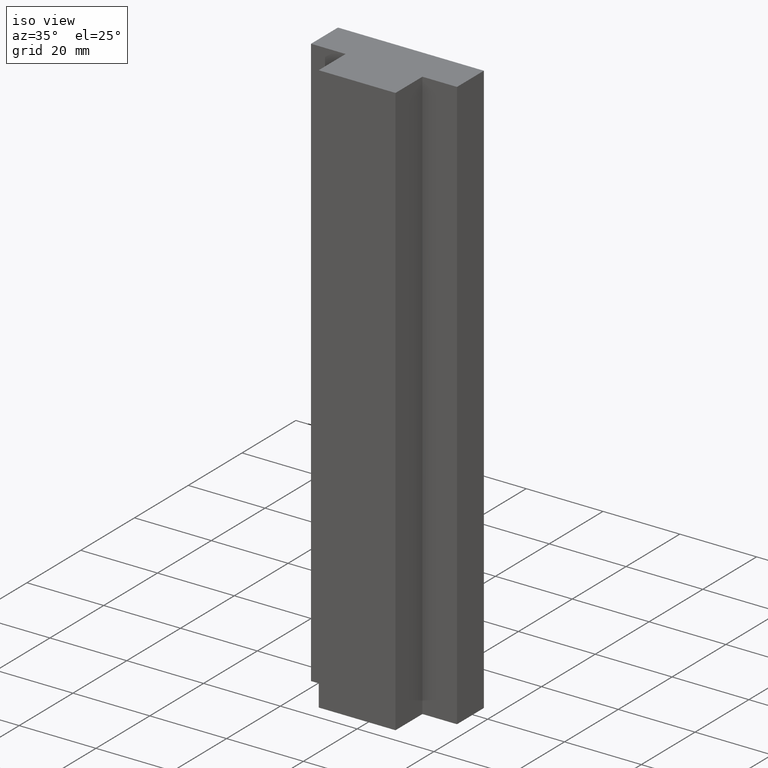
[diagram: clean part render]
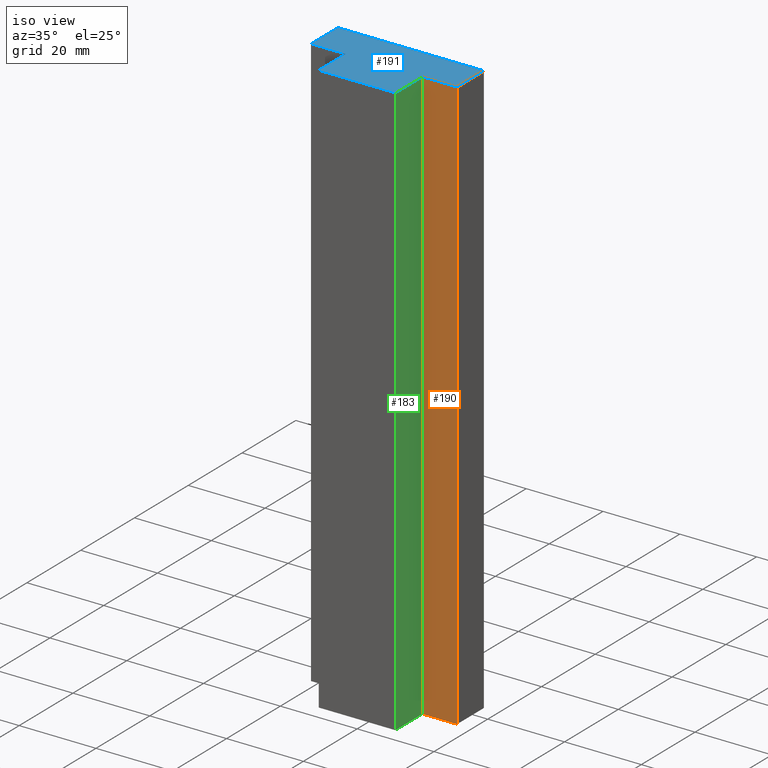
[diagram: same view with three faces highlighted in distinct colors, each labeled with its STEP entity id]
A machine part, iso view with three faces highlighted in distinct colors.
Their STEP definitions:

[orange] entity #190 — the highlighted planar face has unit normal (0, -1, 0).
#24=FACE_OUTER_BOUND('',#34,.T.);
#34=EDGE_LOOP('',(#160,#161,#162,#163));
#37=LINE('',#277,#61);
#46=LINE('',#294,#70);
#58=LINE('',#318,#82);
#59=LINE('',#320,#83);
#61=VECTOR('',#230,10.);
#70=VECTOR('',#241,10.);
#82=VECTOR('',#265,10.);
#83=VECTOR('',#268,10.);
#84=VERTEX_POINT('',#273);
#86=VERTEX_POINT('',#276);
#92=VERTEX_POINT('',#290);
#99=VERTEX_POINT('',#316);
#101=EDGE_CURVE('',#86,#84,#37,.T.);
#110=EDGE_CURVE('',#92,#86,#46,.T.);
#122=EDGE_CURVE('',#84,#99,#58,.T.);
#123=EDGE_CURVE('',#99,#92,#59,.T.);
#160=ORIENTED_EDGE('',*,*,#123,.T.);
#161=ORIENTED_EDGE('',*,*,#110,.T.);
#162=ORIENTED_EDGE('',*,*,#101,.T.);
#163=ORIENTED_EDGE('',*,*,#122,.T.);
#180=PLANE('',#223);
#190=ADVANCED_FACE('',(#24),#180,.T.);
#223=AXIS2_PLACEMENT_3D('',#319,#266,#267);
#230=DIRECTION('',(1.,1.2335811384724E-16,0.));
#241=DIRECTION('',(0.,0.,-1.));
#265=DIRECTION('',(0.,0.,1.));
#266=DIRECTION('center_axis',(1.2335811384724E-16,-1.,0.));
#267=DIRECTION('ref_axis',(0.,0.,-1.));
#268=DIRECTION('',(-1.,-1.2335811384724E-16,0.));
#273=CARTESIAN_POINT('',(19.,10.,-75.));
#276=CARTESIAN_POINT('',(10.,10.,-75.));
#277=CARTESIAN_POINT('',(19.,10.,-75.));
#290=CARTESIAN_POINT('',(10.,10.,75.));
#294=CARTESIAN_POINT('',(10.,10.,0.));
#316=CARTESIAN_POINT('',(19.,10.,75.));
#318=CARTESIAN_POINT('',(19.,10.,0.));
#319=CARTESIAN_POINT('Origin',(19.,10.,0.));
#320=CARTESIAN_POINT('',(19.,10.,75.));

[blue] entity #191 — the highlighted planar face has unit normal (0, 0, 1).
#25=FACE_OUTER_BOUND('',#35,.T.);
#35=EDGE_LOOP('',(#164,#165,#166,#167,#168,#169,#170,#171));
#44=LINE('',#292,#68);
#47=LINE('',#297,#71);
#49=LINE('',#301,#73);
#51=LINE('',#305,#75);
#53=LINE('',#309,#77);
#55=LINE('',#313,#79);
#57=LINE('',#317,#81);
#59=LINE('',#320,#83);
#68=VECTOR('',#239,10.);
#71=VECTOR('',#244,10.);
#73=VECTOR('',#248,10.);
#75=VECTOR('',#252,10.);
#77=VECTOR('',#256,10.);
#79=VECTOR('',#260,10.);
#81=VECTOR('',#264,10.);
#83=VECTOR('',#268,10.);
#92=VERTEX_POINT('',#290);
#93=VERTEX_POINT('',#291);
#94=VERTEX_POINT('',#296);
#95=VERTEX_POINT('',#300);
#96=VERTEX_POINT('',#304);
#97=VERTEX_POINT('',#308);
#98=VERTEX_POINT('',#312);
#99=VERTEX_POINT('',#316);
#108=EDGE_CURVE('',#92,#93,#44,.T.);
#111=EDGE_CURVE('',#93,#94,#47,.T.);
#113=EDGE_CURVE('',#94,#95,#49,.T.);
#115=EDGE_CURVE('',#95,#96,#51,.T.);
#117=EDGE_CURVE('',#96,#97,#53,.T.);
#119=EDGE_CURVE('',#97,#98,#55,.T.);
#121=EDGE_CURVE('',#98,#99,#57,.T.);
#123=EDGE_CURVE('',#99,#92,#59,.T.);
#164=ORIENTED_EDGE('',*,*,#108,.F.);
#165=ORIENTED_EDGE('',*,*,#123,.F.);
#166=ORIENTED_EDGE('',*,*,#121,.F.);
#167=ORIENTED_EDGE('',*,*,#119,.F.);
#168=ORIENTED_EDGE('',*,*,#117,.F.);
#169=ORIENTED_EDGE('',*,*,#115,.F.);
#170=ORIENTED_EDGE('',*,*,#113,.F.);
#171=ORIENTED_EDGE('',*,*,#111,.F.);
#181=PLANE('',#224);
#191=ADVANCED_FACE('',(#25),#181,.T.);
#224=AXIS2_PLACEMENT_3D('',#321,#269,#270);
#239=DIRECTION('',(3.33066907387547E-16,-1.,0.));
#244=DIRECTION('',(-1.,0.,0.));
#248=DIRECTION('',(3.33066907387547E-16,1.,0.));
#252=DIRECTION('',(-1.,1.2335811384724E-16,0.));
#256=DIRECTION('',(-8.88178419700125E-16,1.,0.));
#260=DIRECTION('',(1.,0.,0.));
#264=DIRECTION('',(-4.44089209850062E-16,-1.,0.));
#268=DIRECTION('',(-1.,-1.2335811384724E-16,0.));
#269=DIRECTION('center_axis',(0.,0.,1.));
#270=DIRECTION('ref_axis',(1.,0.,0.));
#290=CARTESIAN_POINT('',(10.,10.,75.));
#291=CARTESIAN_POINT('',(10.,-9.38817987215873E-16,75.));
#292=CARTESIAN_POINT('',(10.,10.,75.));
#296=CARTESIAN_POINT('',(-10.,-9.38817987215873E-16,75.));
#297=CARTESIAN_POINT('',(10.,-9.38817987215873E-16,75.));
#300=CARTESIAN_POINT('',(-10.,10.,75.));
#301=CARTESIAN_POINT('',(-10.,-9.38817987215873E-16,75.));
#304=CARTESIAN_POINT('',(-19.,10.,75.));
#305=CARTESIAN_POINT('',(-10.,10.,75.));
#308=CARTESIAN_POINT('',(-19.,20.,75.));
#309=CARTESIAN_POINT('',(-19.,10.,75.));
#312=CARTESIAN_POINT('',(19.,20.,75.));
#313=CARTESIAN_POINT('',(-19.,20.,75.));
#316=CARTESIAN_POINT('',(19.,10.,75.));
#317=CARTESIAN_POINT('',(19.,20.,75.));
#320=CARTESIAN_POINT('',(19.,10.,75.));
#321=CARTESIAN_POINT('Origin',(-1.2490009027033E-15,11.551724137931,75.));

[green] entity #183 — the highlighted planar face has unit normal (1, 0, 0).
#17=FACE_OUTER_BOUND('',#27,.T.);
#27=EDGE_LOOP('',(#132,#133,#134,#135));
#38=LINE('',#279,#62);
#44=LINE('',#292,#68);
#45=LINE('',#293,#69);
#46=LINE('',#294,#70);
#62=VECTOR('',#231,10.);
#68=VECTOR('',#239,10.);
#69=VECTOR('',#240,10.);
#70=VECTOR('',#241,10.);
#86=VERTEX_POINT('',#276);
#87=VERTEX_POINT('',#278);
#92=VERTEX_POINT('',#290);
#93=VERTEX_POINT('',#291);
#102=EDGE_CURVE('',#87,#86,#38,.T.);
#108=EDGE_CURVE('',#92,#93,#44,.T.);
#109=EDGE_CURVE('',#93,#87,#45,.T.);
#110=EDGE_CURVE('',#92,#86,#46,.T.);
#132=ORIENTED_EDGE('',*,*,#108,.T.);
#133=ORIENTED_EDGE('',*,*,#109,.T.);
#134=ORIENTED_EDGE('',*,*,#102,.T.);
#135=ORIENTED_EDGE('',*,*,#110,.F.);
#173=PLANE('',#216);
#183=ADVANCED_FACE('',(#17),#173,.T.);
#216=AXIS2_PLACEMENT_3D('',#289,#237,#238);
#231=DIRECTION('',(-3.33066907387547E-16,1.,0.));
#237=DIRECTION('center_axis',(1.,3.33066907387547E-16,0.));
#238=DIRECTION('ref_axis',(0.,0.,-1.));
#239=DIRECTION('',(3.33066907387547E-16,-1.,0.));
#240=DIRECTION('',(0.,0.,-1.));
#241=DIRECTION('',(0.,0.,-1.));
#276=CARTESIAN_POINT('',(10.,10.,-75.));
#278=CARTESIAN_POINT('',(10.,-9.38817987215873E-16,-75.));
#279=CARTESIAN_POINT('',(10.,10.,-75.));
#289=CARTESIAN_POINT('Origin',(10.,10.,0.));
#290=CARTESIAN_POINT('',(10.,10.,75.));
#291=CARTESIAN_POINT('',(10.,-9.38817987215873E-16,75.));
#292=CARTESIAN_POINT('',(10.,10.,75.));
#293=CARTESIAN_POINT('',(10.,-9.38817987215873E-16,0.));
#294=CARTESIAN_POINT('',(10.,10.,0.));